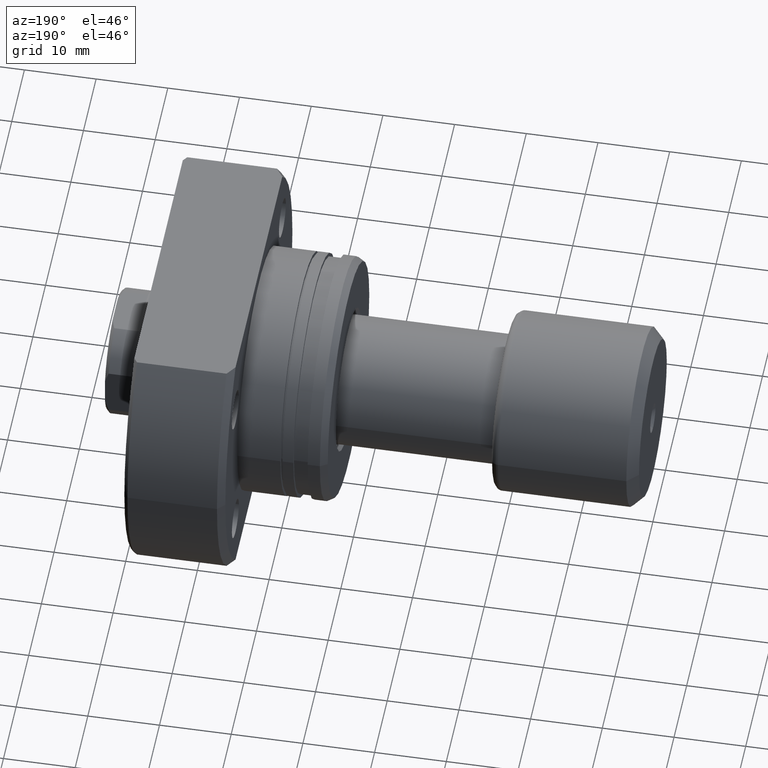
[diagram: clean part render]
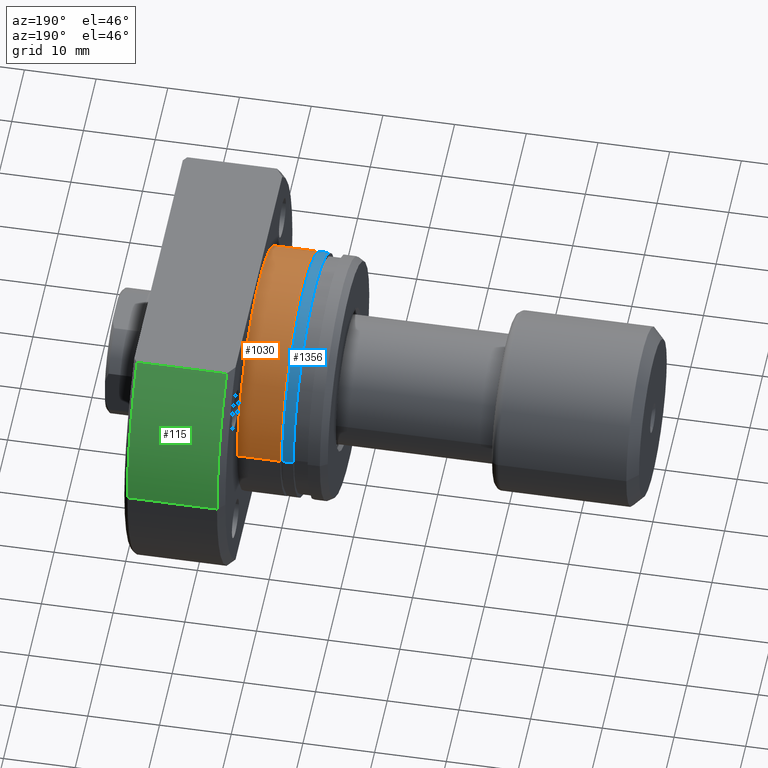
[diagram: same view with three faces highlighted in distinct colors, each labeled with its STEP entity id]
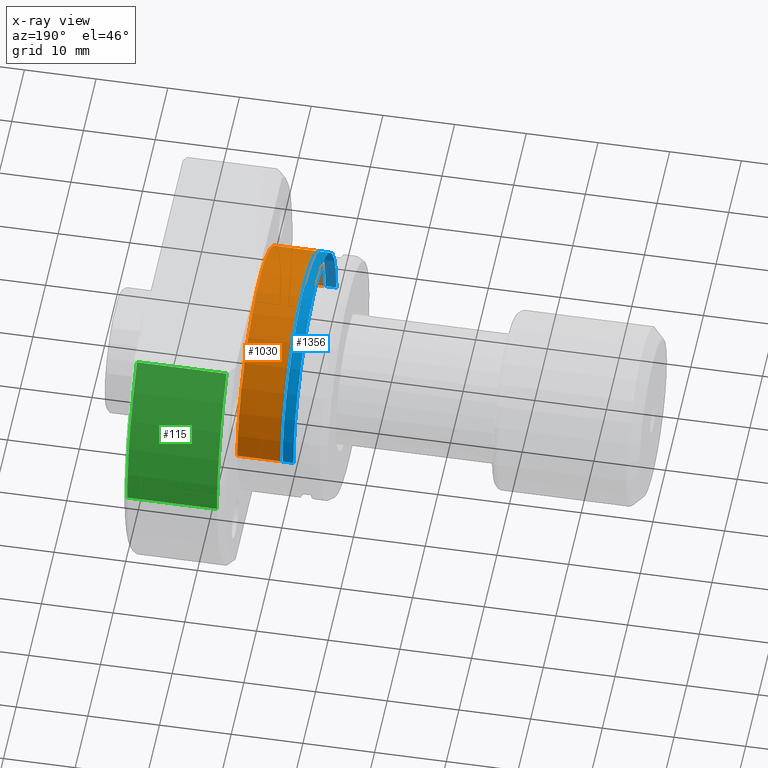
[diagram: x-ray of the same camera — body ghosted, the three highlighted faces saturated]
A machine part, auxiliary view with three faces highlighted in distinct colors.
The next image is the same camera in x-ray (body ghosted, the three faces saturated) — at least one of them is partly hidden behind the body in this view.
Their STEP definitions:

[orange] entity #1030 — the highlighted cylindrical surface (partial cylindrical patch) has radius 17 mm, axis along (1, 0, 0).
#17 = ORIENTED_EDGE ( 'NONE', *, *, #1227, .T. ) ;
#80 = CARTESIAN_POINT ( 'NONE',  ( 6.499999999999783284, 6.007701278835876331E-17, 0.000000000000000000 ) ) ;
#128 = DIRECTION ( 'NONE',  ( 0.000000000000000000, 1.000000000000000000, 0.000000000000000000 ) ) ;
#146 = CARTESIAN_POINT ( 'NONE',  ( 26.50000000000000711, 2.449293598294708880E-16, 0.000000000000000000 ) ) ;
#248 = CIRCLE ( 'NONE', #2495, 16.99999999999999645 ) ;
#290 = DIRECTION ( 'NONE',  ( 0.000000000000000000, 1.000000000000000000, 0.000000000000000000 ) ) ;
#303 = VECTOR ( 'NONE', #1460, 1000.000000000000000 ) ;
#389 = CYLINDRICAL_SURFACE ( 'NONE', #2860, 16.99999999999999645 ) ;
#530 = VERTEX_POINT ( 'NONE', #1189 ) ;
#579 = DIRECTION ( 'NONE',  ( 1.000000000000000000, 9.242617352055502386E-18, -0.000000000000000000 ) ) ;
#596 = VERTEX_POINT ( 'NONE', #928 ) ;
#894 = ORIENTED_EDGE ( 'NONE', *, *, #1711, .F. ) ;
#928 = CARTESIAN_POINT ( 'NONE',  ( 6.499999999999783284, 16.99999999999999645, 0.000000000000000000 ) ) ;
#1030 = ADVANCED_FACE ( 'NONE', ( #1386 ), #389, .T. ) ;
#1062 = ORIENTED_EDGE ( 'NONE', *, *, #1449, .F. ) ;
#1189 = CARTESIAN_POINT ( 'NONE',  ( 6.499999999999783284, -16.99999999999999645, 2.081899558550499885E-15 ) ) ;
#1212 = CARTESIAN_POINT ( 'NONE',  ( 26.50000000000000711, -16.99999999999999645, 2.081899558550499885E-15 ) ) ;
#1216 = VERTEX_POINT ( 'NONE', #2817 ) ;
#1227 = EDGE_CURVE ( 'NONE', #596, #530, #248, .T. ) ;
#1255 = LINE ( 'NONE', #2225, #2341 ) ;
#1386 = FACE_OUTER_BOUND ( 'NONE', #1520, .T. ) ;
#1405 = DIRECTION ( 'NONE',  ( 1.000000000000000000, 9.242617352055502386E-18, -0.000000000000000000 ) ) ;
#1449 = EDGE_CURVE ( 'NONE', #596, #1216, #1255, .T. ) ;
#1460 = DIRECTION ( 'NONE',  ( 1.000000000000000000, 9.242617352055502386E-18, -0.000000000000000000 ) ) ;
#1520 = EDGE_LOOP ( 'NONE', ( #17, #2214, #894, #1062 ) ) ;
#1609 = DIRECTION ( 'NONE',  ( 1.000000000000000000, 9.242617352055502386E-18, -0.000000000000000000 ) ) ;
#1711 = EDGE_CURVE ( 'NONE', #1216, #2146, #2549, .T. ) ;
#2104 = CARTESIAN_POINT ( 'NONE',  ( 12.50000000000000178, 1.155327169006937960E-16, 0.000000000000000000 ) ) ;
#2146 = VERTEX_POINT ( 'NONE', #3116 ) ;
#2214 = ORIENTED_EDGE ( 'NONE', *, *, #2370, .T. ) ;
#2225 = CARTESIAN_POINT ( 'NONE',  ( 26.50000000000000711, 16.99999999999999645, 0.000000000000000000 ) ) ;
#2341 = VECTOR ( 'NONE', #3188, 1000.000000000000000 ) ;
#2370 = EDGE_CURVE ( 'NONE', #530, #2146, #2940, .T. ) ;
#2495 = AXIS2_PLACEMENT_3D ( 'NONE', #80, #579, #290 ) ;
#2549 = CIRCLE ( 'NONE', #3161, 16.99999999999999645 ) ;
#2627 = DIRECTION ( 'NONE',  ( 0.000000000000000000, 1.000000000000000000, 0.000000000000000000 ) ) ;
#2817 = CARTESIAN_POINT ( 'NONE',  ( 12.50000000000000178, 16.99999999999999645, 0.000000000000000000 ) ) ;
#2860 = AXIS2_PLACEMENT_3D ( 'NONE', #146, #1405, #128 ) ;
#2940 = LINE ( 'NONE', #1212, #303 ) ;
#3116 = CARTESIAN_POINT ( 'NONE',  ( 12.50000000000000178, -16.99999999999999645, 2.081899558550499885E-15 ) ) ;
#3161 = AXIS2_PLACEMENT_3D ( 'NONE', #2104, #1609, #2627 ) ;
#3188 = DIRECTION ( 'NONE',  ( 1.000000000000000000, 9.242617352055502386E-18, -0.000000000000000000 ) ) ;

[blue] entity #1356 — the highlighted cylindrical surface (partial cylindrical patch) has radius 17 mm, axis along (1, 0, 0).
#62 = EDGE_LOOP ( 'NONE', ( #2566, #2578, #341, #176 ) ) ;
#118 = DIRECTION ( 'NONE',  ( 1.000000000000000000, 9.242617352055502386E-18, -0.000000000000000000 ) ) ;
#176 = ORIENTED_EDGE ( 'NONE', *, *, #886, .F. ) ;
#178 = DIRECTION ( 'NONE',  ( 1.000000000000000000, 9.242617352055502386E-18, -0.000000000000000000 ) ) ;
#227 = CARTESIAN_POINT ( 'NONE',  ( 6.200000000001034905, 16.99999999999999645, 0.000000000000000000 ) ) ;
#241 = VECTOR ( 'NONE', #178, 1000.000000000000000 ) ;
#244 = AXIS2_PLACEMENT_3D ( 'NONE', #1628, #2406, #1653 ) ;
#341 = ORIENTED_EDGE ( 'NONE', *, *, #1011, .F. ) ;
#575 = DIRECTION ( 'NONE',  ( 1.000000000000000000, 9.242617352055502386E-18, -0.000000000000000000 ) ) ;
#597 = EDGE_CURVE ( 'NONE', #776, #2096, #683, .T. ) ;
#683 = LINE ( 'NONE', #2163, #241 ) ;
#776 = VERTEX_POINT ( 'NONE', #3225 ) ;
#784 = LINE ( 'NONE', #3017, #3154 ) ;
#886 = EDGE_CURVE ( 'NONE', #1154, #1458, #784, .T. ) ;
#1011 = EDGE_CURVE ( 'NONE', #1458, #2096, #1550, .T. ) ;
#1066 = EDGE_CURVE ( 'NONE', #1154, #776, #2387, .T. ) ;
#1154 = VERTEX_POINT ( 'NONE', #2699 ) ;
#1356 = ADVANCED_FACE ( 'NONE', ( #2666 ), #1375, .T. ) ;
#1358 = DIRECTION ( 'NONE',  ( 0.000000000000000000, 1.000000000000000000, 0.000000000000000000 ) ) ;
#1375 = CYLINDRICAL_SURFACE ( 'NONE', #3011, 16.99999999999999645 ) ;
#1458 = VERTEX_POINT ( 'NONE', #227 ) ;
#1550 = CIRCLE ( 'NONE', #2181, 16.99999999999999645 ) ;
#1628 = CARTESIAN_POINT ( 'NONE',  ( 4.699999999998548894, 4.344030155464744241E-17, 0.000000000000000000 ) ) ;
#1653 = DIRECTION ( 'NONE',  ( 0.000000000000000000, 1.000000000000000000, 0.000000000000000000 ) ) ;
#1929 = DIRECTION ( 'NONE',  ( 0.000000000000000000, 1.000000000000000000, 0.000000000000000000 ) ) ;
#2096 = VERTEX_POINT ( 'NONE', #2156 ) ;
#2134 = CARTESIAN_POINT ( 'NONE',  ( 26.50000000000000711, 2.449293598294708880E-16, 0.000000000000000000 ) ) ;
#2156 = CARTESIAN_POINT ( 'NONE',  ( 6.200000000001034905, -16.99999999999999645, 2.081899558550499885E-15 ) ) ;
#2163 = CARTESIAN_POINT ( 'NONE',  ( 26.50000000000000711, -16.99999999999999645, 2.081899558550499885E-15 ) ) ;
#2181 = AXIS2_PLACEMENT_3D ( 'NONE', #2813, #575, #1358 ) ;
#2387 = CIRCLE ( 'NONE', #244, 16.99999999999999645 ) ;
#2406 = DIRECTION ( 'NONE',  ( 1.000000000000000000, 9.242617352055502386E-18, -0.000000000000000000 ) ) ;
#2410 = DIRECTION ( 'NONE',  ( 1.000000000000000000, 9.242617352055502386E-18, -0.000000000000000000 ) ) ;
#2566 = ORIENTED_EDGE ( 'NONE', *, *, #1066, .T. ) ;
#2578 = ORIENTED_EDGE ( 'NONE', *, *, #597, .T. ) ;
#2666 = FACE_OUTER_BOUND ( 'NONE', #62, .T. ) ;
#2699 = CARTESIAN_POINT ( 'NONE',  ( 4.699999999998548894, 16.99999999999999645, 0.000000000000000000 ) ) ;
#2813 = CARTESIAN_POINT ( 'NONE',  ( 6.200000000001034905, 5.730422758275368312E-17, 0.000000000000000000 ) ) ;
#3011 = AXIS2_PLACEMENT_3D ( 'NONE', #2134, #2410, #1929 ) ;
#3017 = CARTESIAN_POINT ( 'NONE',  ( 26.50000000000000711, 16.99999999999999645, 0.000000000000000000 ) ) ;
#3154 = VECTOR ( 'NONE', #118, 1000.000000000000000 ) ;
#3225 = CARTESIAN_POINT ( 'NONE',  ( 4.699999999998548894, -16.99999999999999645, 2.081899558550499885E-15 ) ) ;

[green] entity #115 — the highlighted cylindrical surface (partial cylindrical patch) has radius 27.5 mm, axis along (1, 0, 0).
#98 = VECTOR ( 'NONE', #743, 1000.000000000000000 ) ;
#115 = ADVANCED_FACE ( 'NONE', ( #2400 ), #396, .T. ) ;
#208 = VERTEX_POINT ( 'NONE', #2896 ) ;
#396 = CYLINDRICAL_SURFACE ( 'NONE', #667, 27.49999999999991473 ) ;
#437 = CARTESIAN_POINT ( 'NONE',  ( 13.49999999999999112, 27.49999999999991473, 0.000000000000000000 ) ) ;
#456 = ORIENTED_EDGE ( 'NONE', *, *, #689, .F. ) ;
#621 = VERTEX_POINT ( 'NONE', #1912 ) ;
#667 = AXIS2_PLACEMENT_3D ( 'NONE', #2882, #3133, #2158 ) ;
#689 = EDGE_CURVE ( 'NONE', #3031, #621, #2763, .T. ) ;
#743 = DIRECTION ( 'NONE',  ( 1.000000000000000000, -2.886466111666351885E-14, -0.000000000000000000 ) ) ;
#797 = ORIENTED_EDGE ( 'NONE', *, *, #1870, .T. ) ;
#983 = CIRCLE ( 'NONE', #1874, 27.49999999999991473 ) ;
#994 = CARTESIAN_POINT ( 'NONE',  ( 26.00000000000007461, 19.88089535207092950, 19.00000000000000355 ) ) ;
#1337 = DIRECTION ( 'NONE',  ( 0.000000000000000000, 1.000000000000000000, 0.000000000000000000 ) ) ;
#1731 = CIRCLE ( 'NONE', #2254, 27.49999999999991473 ) ;
#1790 = CARTESIAN_POINT ( 'NONE',  ( 26.00000000000008882, 2.403080511534438786E-16, 0.000000000000000000 ) ) ;
#1799 = ORIENTED_EDGE ( 'NONE', *, *, #3077, .F. ) ;
#1834 = VERTEX_POINT ( 'NONE', #994 ) ;
#1870 = EDGE_CURVE ( 'NONE', #3031, #208, #983, .T. ) ;
#1874 = AXIS2_PLACEMENT_3D ( 'NONE', #2515, #2221, #2528 ) ;
#1875 = EDGE_CURVE ( 'NONE', #208, #1834, #2239, .T. ) ;
#1912 = CARTESIAN_POINT ( 'NONE',  ( 26.00000000000008882, 27.49999999999991473, 0.000000000000000000 ) ) ;
#1966 = EDGE_LOOP ( 'NONE', ( #456, #797, #3113, #1799 ) ) ;
#1994 = CARTESIAN_POINT ( 'NONE',  ( -2.151057110211240797E-13, 19.88089535207167913, 19.00000000000000355 ) ) ;
#2158 = DIRECTION ( 'NONE',  ( 0.000000000000000000, 1.000000000000000000, 0.000000000000000000 ) ) ;
#2221 = DIRECTION ( 'NONE',  ( 1.000000000000000000, 9.242617352055502386E-18, -0.000000000000000000 ) ) ;
#2239 = LINE ( 'NONE', #1994, #98 ) ;
#2254 = AXIS2_PLACEMENT_3D ( 'NONE', #1790, #2522, #1337 ) ;
#2278 = CARTESIAN_POINT ( 'NONE',  ( 26.50000000000000711, 27.49999999999991473, 0.000000000000000000 ) ) ;
#2400 = FACE_OUTER_BOUND ( 'NONE', #1966, .T. ) ;
#2457 = DIRECTION ( 'NONE',  ( 1.000000000000000000, 9.242617352055502386E-18, -0.000000000000000000 ) ) ;
#2515 = CARTESIAN_POINT ( 'NONE',  ( 13.49999999999999112, 1.247753342527491952E-16, 0.000000000000000000 ) ) ;
#2522 = DIRECTION ( 'NONE',  ( 1.000000000000000000, 9.242617352055502386E-18, -0.000000000000000000 ) ) ;
#2528 = DIRECTION ( 'NONE',  ( 0.000000000000000000, 1.000000000000000000, 0.000000000000000000 ) ) ;
#2693 = VECTOR ( 'NONE', #2457, 1000.000000000000000 ) ;
#2763 = LINE ( 'NONE', #2278, #2693 ) ;
#2882 = CARTESIAN_POINT ( 'NONE',  ( 26.50000000000000711, 2.449293598294708880E-16, 0.000000000000000000 ) ) ;
#2896 = CARTESIAN_POINT ( 'NONE',  ( 13.49999999999998757, 19.88089535207129188, 19.00000000000000355 ) ) ;
#3031 = VERTEX_POINT ( 'NONE', #437 ) ;
#3077 = EDGE_CURVE ( 'NONE', #621, #1834, #1731, .T. ) ;
#3113 = ORIENTED_EDGE ( 'NONE', *, *, #1875, .T. ) ;
#3133 = DIRECTION ( 'NONE',  ( 1.000000000000000000, 9.242617352055502386E-18, -0.000000000000000000 ) ) ;